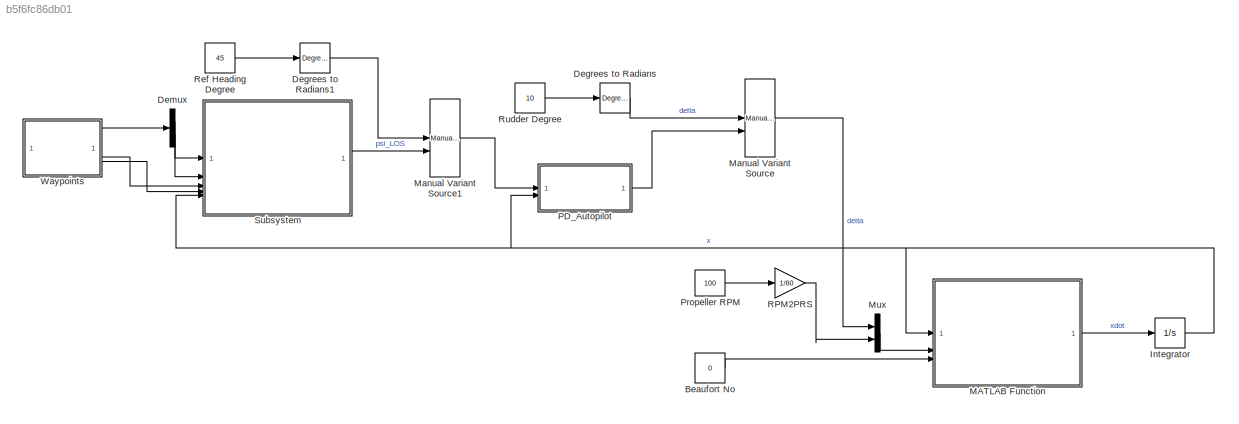
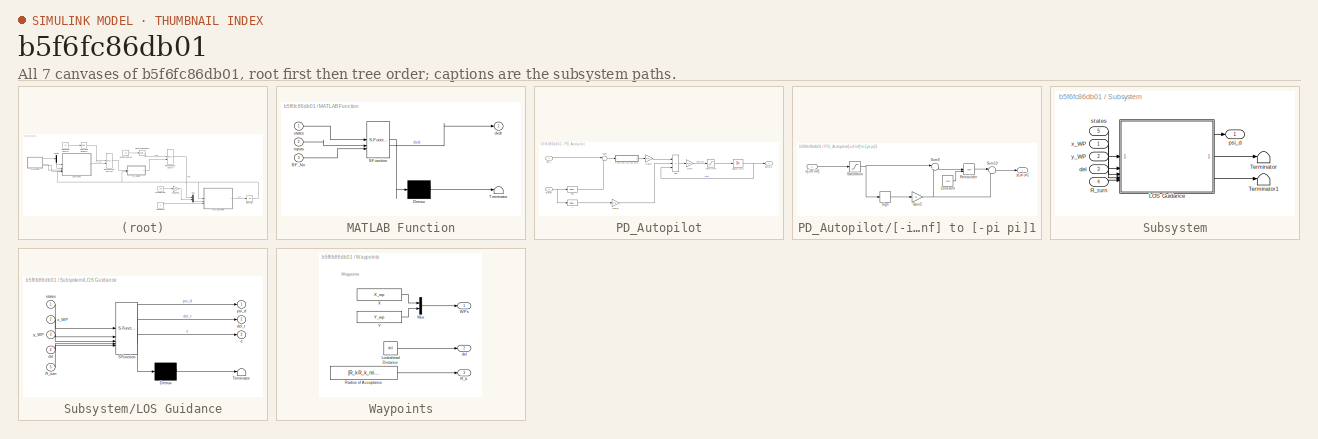
[diagram: thumbnail index - all 7 canvases of the model, root first then tree order]
MODEL slx_b5f6fc86db01
KIND model
CONFIG AbsTol = auto
CONFIG EnableMultiTasking = off
CONFIG FixedStep = 0.01
CONFIG MaxStep = auto
CONFIG MinStep = auto
CONFIG RelTol = 1e-3
CONFIG SampleTimeConstraint = Unconstrained
CONFIG SolverName = ode4
CONFIG StartTime = 0.0
CONFIG StopTime = 1200
BLOCK [Constant] Beaufort No
  Value = 0
BLOCK [Reference] Degrees to Radians  REF=simulink_extras/Transformations/Degrees to
Radians
  SourceBlock = simulink_extras/Transformations/Degrees to\nRadians
  SourceType = DegreesToRadians
BLOCK [Reference] Degrees to Radians1  REF=simulink_extras/Transformations/Degrees to
Radians
  SourceBlock = simulink_extras/Transformations/Degrees to\nRadians
  SourceType = DegreesToRadians
BLOCK [Demux] Demux
  Outputs = 2
BLOCK [Integrator] Integrator
  InitialCondition = [0, 0, 0, 3, 0, 0]'
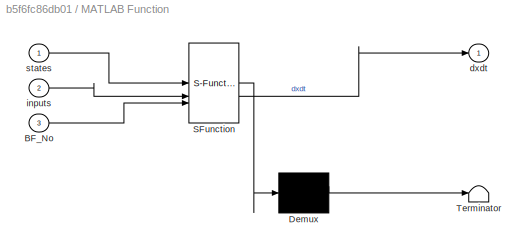
BLOCK [SubSystem] MATLAB Function
  ErrorFcn = Stateflow.Translate.translate
  PermitHierarchicalResolution = ExplicitOnly
  SFBlockType = MATLAB Function
  TreatAsAtomicUnit = on
BLOCK [Demux] MATLAB Function/ Demux 
  Outputs = 1
BLOCK [S-Function] MATLAB Function/ SFunction 
  EnableBusSupport = on
  FunctionName = sf_sfun
  PortCounts = [3 2]
  SFcnIsStateOwnerBlock = off
  SFunctionDeploymentMode = off
  Tag = Stateflow S-Function 2
BLOCK [Terminator] MATLAB Function/ Terminator 
BLOCK [Inport] MATLAB Function/BF_No
  Port = 3
BLOCK [Outport] MATLAB Function/dxdt
BLOCK [Inport] MATLAB Function/inputs
  Port = 2
BLOCK [Inport] MATLAB Function/states
BLOCK [Reference] Manual Variant Source  REF=simulink/Signal
Routing/Manual
Variant Source
  SourceBlock = simulink/Signal\nRouting/Manual\nVariant Source
  SourceType = ManualVariantSource
BLOCK [Reference] Manual Variant Source1  REF=simulink/Signal
Routing/Manual
Variant Source
  SourceBlock = simulink/Signal\nRouting/Manual\nVariant Source
  SourceType = ManualVariantSource
BLOCK [Mux] Mux
  DisplayOption = bar
  Inputs = 2
BLOCK [SubSystem] PD_Autopilot
BLOCK [Sum] PD_Autopilot/Add
  IconShape = rectangular
  Inputs = ---
BLOCK [Gain] PD_Autopilot/Gain
  Gain = 1/T_E
BLOCK [Gain] PD_Autopilot/Gain1
  Gain = K_P
BLOCK [Gain] PD_Autopilot/Gain2
  Gain = T_D
BLOCK [Sum] PD_Autopilot/Sum
  Inputs = |-+
BLOCK [SubSystem] PD_Autopilot/[-inf inf] to [-pi pi]1
BLOCK [Constant] PD_Autopilot/[-inf inf] to [-pi pi]1/Constant
  Value = 2*pi
BLOCK [Gain] PD_Autopilot/[-inf inf] to [-pi pi]1/Gain3
  Gain = pi
BLOCK [Math] PD_Autopilot/[-inf inf] to [-pi pi]1/Remainder
  Operator = rem
  SignedPower = on
BLOCK [Saturate] PD_Autopilot/[-inf inf] to [-pi pi]1/Saturation
  LowerLimit = -1e10
  UpperLimit = 1e10
BLOCK [Signum] PD_Autopilot/[-inf inf] to [-pi pi]1/Sign
BLOCK [Sum] PD_Autopilot/[-inf inf] to [-pi pi]1/Sum10
  Inputs = |+-
BLOCK [Sum] PD_Autopilot/[-inf inf] to [-pi pi]1/Sum9
  Inputs = |++
BLOCK [Inport] PD_Autopilot/[-inf inf] to [-pi pi]1/x[-inf inf]
BLOCK [Outport] PD_Autopilot/[-inf inf] to [-pi pi]1/y[-pi pi]
  VectorParamsAs1DForOutWhenUnconnected = off
BLOCK [Integrator] PD_Autopilot/angle limit
  LimitOutput = on
  LowerSaturationLimit = -delta_max*pi/180
  UpperSaturationLimit = delta_max*pi/180
BLOCK [Outport] PD_Autopilot/delta_c
  VectorParamsAs1DForOutWhenUnconnected = off
BLOCK [Selector] PD_Autopilot/psi
  IndexOptions = Index vector (dialog)
  Indices = [3]
  InputPortWidth = 6
  OutputSizes = 1
BLOCK [Inport] PD_Autopilot/psi_r
BLOCK [Selector] PD_Autopilot/r
  IndexOptions = Index vector (dialog)
  Indices = [6]
  InputPortWidth = 6
  OutputSizes = 1
BLOCK [Saturate] PD_Autopilot/rate limit
  LowerLimit = -delta_rate*pi/180
  UpperLimit = delta_rate*pi/180
BLOCK [Inport] PD_Autopilot/states
  Port = 2
BLOCK [Constant] Propeller RPM
  Value = 100
BLOCK [Gain] RPM2PRS
  Gain = 1/60
BLOCK [Constant] Ref Heading Degree
  Value = 45
BLOCK [Constant] Rudder Degree
  Value = 10
BLOCK [SubSystem] Subsystem
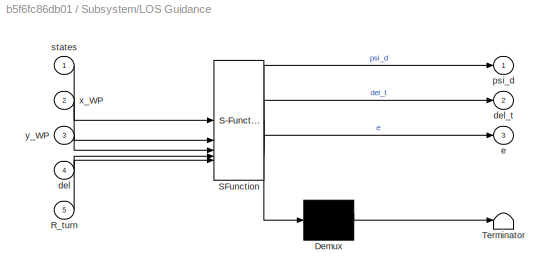
BLOCK [SubSystem] Subsystem/LOS Guidance
  ErrorFcn = Stateflow.Translate.translate
  PermitHierarchicalResolution = ExplicitOnly
  SFBlockType = MATLAB Function
  TreatAsAtomicUnit = on
  VariantControl = varient3
BLOCK [Demux] Subsystem/LOS Guidance/ Demux 
  Outputs = 1
BLOCK [S-Function] Subsystem/LOS Guidance/ SFunction 
  EnableBusSupport = on
  FunctionName = sf_sfun
  PortCounts = [5 4]
  SFcnIsStateOwnerBlock = off
  SFunctionDeploymentMode = off
  Tag = Stateflow S-Function 8
BLOCK [Terminator] Subsystem/LOS Guidance/ Terminator 
BLOCK [Inport] Subsystem/LOS Guidance/R_turn
  Port = 5
BLOCK [Inport] Subsystem/LOS Guidance/del
  Port = 4
BLOCK [Outport] Subsystem/LOS Guidance/del_t
  Port = 2
  VectorParamsAs1DForOutWhenUnconnected = off
BLOCK [Outport] Subsystem/LOS Guidance/e
  Port = 3
  VectorParamsAs1DForOutWhenUnconnected = off
BLOCK [Outport] Subsystem/LOS Guidance/psi_d
  VectorParamsAs1DForOutWhenUnconnected = off
BLOCK [Inport] Subsystem/LOS Guidance/states
BLOCK [Inport] Subsystem/LOS Guidance/x_WP
  Port = 2
BLOCK [Inport] Subsystem/LOS Guidance/y_WP
  Port = 3
BLOCK [Inport] Subsystem/R_turn
  Port = 4
BLOCK [Terminator] Subsystem/Terminator
BLOCK [Terminator] Subsystem/Terminator1
BLOCK [Inport] Subsystem/del
  Port = 3
BLOCK [Outport] Subsystem/psi_d
BLOCK [Inport] Subsystem/states
  Port = 5
BLOCK [Inport] Subsystem/x_WP
BLOCK [Inport] Subsystem/y_WP
  Port = 2
BLOCK [SubSystem] Waypoints
BLOCK [Constant] Waypoints/Lookahead Distance
  Value = del
BLOCK [Mux] Waypoints/Mux
  DisplayOption = bar
  Inputs = 2
BLOCK [Outport] Waypoints/R_k
  Port = 3
  VectorParamsAs1DForOutWhenUnconnected = off
BLOCK [Constant] Waypoints/Radius of Acceptance
  Value = [R_k R_k_min R_k_max]
BLOCK [Outport] Waypoints/WPs
  VectorParamsAs1DForOutWhenUnconnected = off
BLOCK [Constant] Waypoints/X
  Value = X_wp
BLOCK [Constant] Waypoints/Y
  Value = Y_wp
BLOCK [Outport] Waypoints/del
  Port = 2
  VectorParamsAs1DForOutWhenUnconnected = off
ANNOTATION Waypoints: Waypoints
LINE Beaufort No:1 -> MATLAB Function:3
LINE Degrees to Radians1:1 -> Manual Variant Source1:1
LINE Degrees to Radians:1 -> Manual Variant Source:1
LINE Demux:1 -> Subsystem:1
LINE Demux:2 -> Subsystem:2
NET Integrator:1 -> MATLAB Function:1, PD_Autopilot:2, Subsystem:5
LINE MATLAB Function:1 -> Integrator:1
LINE Manual Variant Source1:1 -> PD_Autopilot:1
LINE Manual Variant Source:1 -> Mux:1
LINE Mux:1 -> MATLAB Function:2
LINE PD_Autopilot/Add:1 -> PD_Autopilot/Gain:1
LINE PD_Autopilot/Gain1:1 -> PD_Autopilot/Add:1
LINE PD_Autopilot/Gain2:1 -> PD_Autopilot/Add:2
LINE PD_Autopilot/Gain:1 -> PD_Autopilot/rate limit:1
LINE PD_Autopilot/Sum:1 -> PD_Autopilot/[-inf inf] to [-pi pi]1:1
LINE PD_Autopilot/[-inf inf] to [-pi pi]1/Constant:1 -> PD_Autopilot/[-inf inf] to [-pi pi]1/Remainder:2
NET PD_Autopilot/[-inf inf] to [-pi pi]1/Gain3:1 -> PD_Autopilot/[-inf inf] to [-pi pi]1/Sum10:2, PD_Autopilot/[-inf inf] to [-pi pi]1/Sum9:2
LINE PD_Autopilot/[-inf inf] to [-pi pi]1/Remainder:1 -> PD_Autopilot/[-inf inf] to [-pi pi]1/Sum10:1
NET PD_Autopilot/[-inf inf] to [-pi pi]1/Saturation:1 -> PD_Autopilot/[-inf inf] to [-pi pi]1/Sign:1, PD_Autopilot/[-inf inf] to [-pi pi]1/Sum9:1
LINE PD_Autopilot/[-inf inf] to [-pi pi]1/Sign:1 -> PD_Autopilot/[-inf inf] to [-pi pi]1/Gain3:1
LINE PD_Autopilot/[-inf inf] to [-pi pi]1/Sum10:1 -> PD_Autopilot/[-inf inf] to [-pi pi]1/y[-pi pi]:1
LINE PD_Autopilot/[-inf inf] to [-pi pi]1/Sum9:1 -> PD_Autopilot/[-inf inf] to [-pi pi]1/Remainder:1
LINE PD_Autopilot/[-inf inf] to [-pi pi]1/x[-inf inf]:1 -> PD_Autopilot/[-inf inf] to [-pi pi]1/Saturation:1
LINE PD_Autopilot/[-inf inf] to [-pi pi]1:1 -> PD_Autopilot/Gain1:1
NET PD_Autopilot/angle limit:1 -> PD_Autopilot/Add:3, PD_Autopilot/delta_c:1
LINE PD_Autopilot/psi:1 -> PD_Autopilot/Sum:2
LINE PD_Autopilot/psi_r:1 -> PD_Autopilot/Sum:1
LINE PD_Autopilot/r:1 -> PD_Autopilot/Gain2:1
LINE PD_Autopilot/rate limit:1 -> PD_Autopilot/angle limit:1
NET PD_Autopilot/states:1 -> PD_Autopilot/psi:1, PD_Autopilot/r:1
LINE PD_Autopilot:1 -> Manual Variant Source:2
LINE Propeller RPM:1 -> RPM2PRS:1
LINE RPM2PRS:1 -> Mux:2
LINE Ref Heading Degree:1 -> Degrees to Radians1:1
LINE Rudder Degree:1 -> Degrees to Radians:1
LINE Subsystem/LOS Guidance:1 -> Subsystem/psi_d:1
LINE Subsystem/LOS Guidance:2 -> Subsystem/Terminator:1
LINE Subsystem/LOS Guidance:3 -> Subsystem/Terminator1:1
LINE Subsystem/R_turn:1 -> Subsystem/LOS Guidance:5
LINE Subsystem/del:1 -> Subsystem/LOS Guidance:4
LINE Subsystem/states:1 -> Subsystem/LOS Guidance:1
LINE Subsystem/x_WP:1 -> Subsystem/LOS Guidance:2
LINE Subsystem/y_WP:1 -> Subsystem/LOS Guidance:3
LINE Subsystem:1 -> Manual Variant Source1:2
LINE Waypoints/Lookahead Distance:1 -> Waypoints/del:1
LINE Waypoints/Mux:1 -> Waypoints/WPs:1
LINE Waypoints/Radius of Acceptance:1 -> Waypoints/R_k:1
LINE Waypoints/X:1 -> Waypoints/Mux:1
LINE Waypoints/Y:1 -> Waypoints/Mux:2
LINE Waypoints:1 -> Demux:1
LINE Waypoints:2 -> Subsystem:3
LINE Waypoints:3 -> Subsystem:4
note: NET lines group one-source signal fan-out (src -> all destinations, sorted); 1:1 wires keep LINE
CHART MATLAB Function states=1 transitions=1
  STATE_LABEL 'eML_blk_kernel()'
  STATE_LABEL 'SCRIPT:\nfunction dxdt = Bulker3DOF(states,inputs,BF_No)\n\ndxdt = Bulker3DOF(states,inputs,BF_No);\n'
CHART Subsystem/LOS Guidance states=1 transitions=1
  STATE_LABEL 'eML_blk_kernel()'
  STATE_LABEL 'SCRIPT:\nfunction [psi_d, del_t, e]  = LOSStraight(states,x_WP,y_WP,del,R_turn)\n\n[psi_d, del_t, e]   = LOSStraight(states,x_WP,y_WP,del,R_turn);'
CHART  states=0 transitions=0
CHART  states=0 transitions=0
